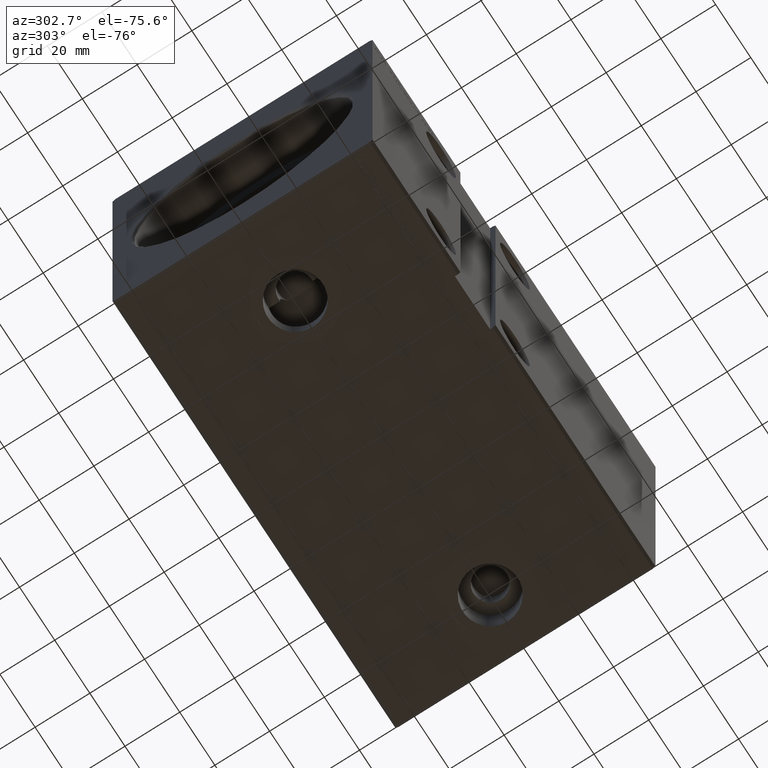
[diagram: clean part render]
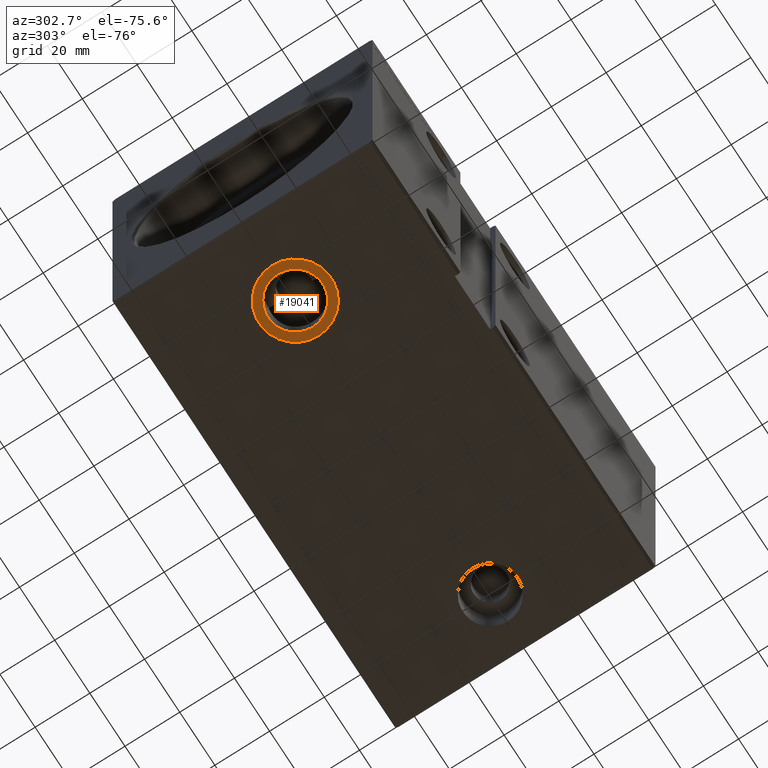
[diagram: same view with one face highlighted and labeled with its STEP entity id]
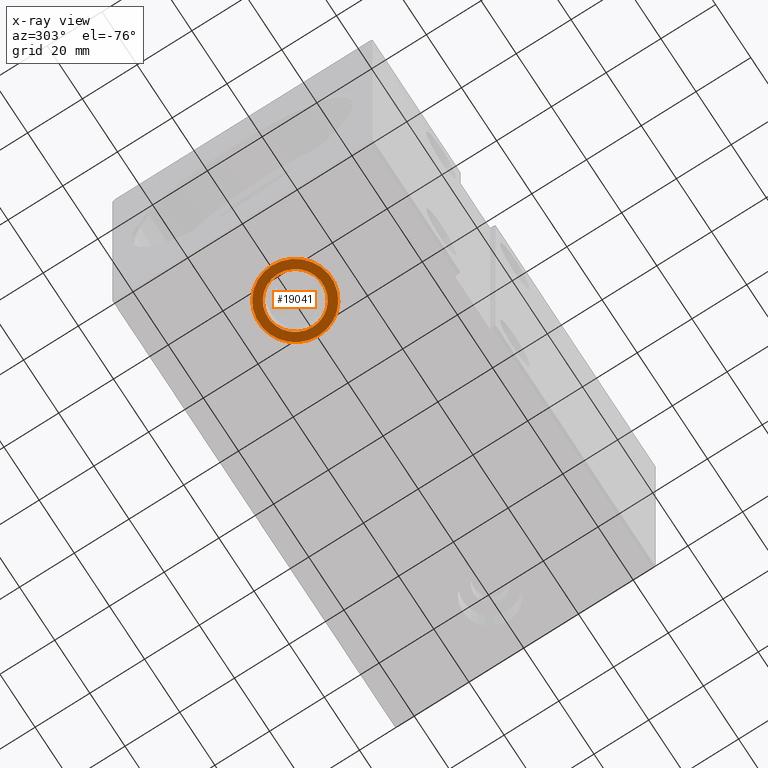
[diagram: x-ray of the same camera — body ghosted, the highlighted face saturated]
A machine part, auxiliary view. The second image highlights one B-rep face of the part: STEP entity #19041.
The next image is the same camera in x-ray: the body ghosted, the highlighted face saturated — about 0% of this face is hidden behind the body in this view.
In plain terms, the highlighted planar face has unit normal (0, 0, -1).
Its self-contained STEP definition (entity closure, byte-faithful):
#19 = AXIS2_PLACEMENT_3D ( 'NONE', #6201, #2583, #18799 ) ;
#624 = CIRCLE ( 'NONE', #19014, 13.24999999999999822 ) ;
#782 = ORIENTED_EDGE ( 'NONE', *, *, #17474, .F. ) ;
#867 = AXIS2_PLACEMENT_3D ( 'NONE', #5587, #8553, #5368 ) ;
#2332 = ORIENTED_EDGE ( 'NONE', *, *, #26760, .T. ) ;
#2583 = DIRECTION ( 'NONE',  ( 0.000000000000000000, 0.000000000000000000, -1.000000000000000000 ) ) ;
#4198 = CARTESIAN_POINT ( 'NONE',  ( 43.25000000000000000, 4.813926486415656995E-15, -62.39999999999999858 ) ) ;
#5368 = DIRECTION ( 'NONE',  ( -1.000000000000000000, 0.000000000000000000, 0.000000000000000000 ) ) ;
#5587 = CARTESIAN_POINT ( 'NONE',  ( 30.00000000000000000, 3.191269477545414310E-15, -62.39999999999999858 ) ) ;
#6201 = CARTESIAN_POINT ( 'NONE',  ( 30.00000000000000000, 3.191269477545414310E-15, -62.39999999999999858 ) ) ;
#6925 = CARTESIAN_POINT ( 'NONE',  ( 30.00000000000000000, 3.191269477545414310E-15, -62.39999999999999858 ) ) ;
#7098 = CARTESIAN_POINT ( 'NONE',  ( 0.000000000000000000, 0.000000000000000000, -62.39999999999999858 ) ) ;
#7172 = CARTESIAN_POINT ( 'NONE',  ( 19.99999999999999645, 3.191269477545414310E-15, -62.39999999999999858 ) ) ;
#7289 = DIRECTION ( 'NONE',  ( -1.000000000000000000, 0.000000000000000000, 0.000000000000000000 ) ) ;
#7917 = VERTEX_POINT ( 'NONE', #4198 ) ;
#8165 = CARTESIAN_POINT ( 'NONE',  ( 16.75000000000000000, 3.191269477545414310E-15, -62.39999999999999858 ) ) ;
#8281 = FACE_BOUND ( 'NONE', #29207, .T. ) ;
#8553 = DIRECTION ( 'NONE',  ( 0.000000000000000000, 0.000000000000000000, -1.000000000000000000 ) ) ;
#10690 = FACE_OUTER_BOUND ( 'NONE', #22689, .T. ) ;
#13524 = DIRECTION ( 'NONE',  ( -1.000000000000000000, 0.000000000000000000, 0.000000000000000000 ) ) ;
#13727 = VERTEX_POINT ( 'NONE', #34699 ) ;
#13815 = ORIENTED_EDGE ( 'NONE', *, *, #39269, .T. ) ;
#15669 = CIRCLE ( 'NONE', #19, 10.00000000000000178 ) ;
#17474 = EDGE_CURVE ( 'NONE', #34711, #13727, #25231, .T. ) ;
#18799 = DIRECTION ( 'NONE',  ( -1.000000000000000000, 0.000000000000000000, 0.000000000000000000 ) ) ;
#19014 = AXIS2_PLACEMENT_3D ( 'NONE', #36738, #20744, #7289 ) ;
#19041 = ADVANCED_FACE ( 'NONE', ( #8281, #10690 ), #30916, .T. ) ;
#19261 = CIRCLE ( 'NONE', #867, 13.24999999999999822 ) ;
#19519 = DIRECTION ( 'NONE',  ( 0.000000000000000000, 0.000000000000000000, -1.000000000000000000 ) ) ;
#20744 = DIRECTION ( 'NONE',  ( 0.000000000000000000, 0.000000000000000000, -1.000000000000000000 ) ) ;
#21173 = AXIS2_PLACEMENT_3D ( 'NONE', #7098, #36749, #23537 ) ;
#22689 = EDGE_LOOP ( 'NONE', ( #2332, #13815 ) ) ;
#23537 = DIRECTION ( 'NONE',  ( -1.000000000000000000, 0.000000000000000000, -0.000000000000000000 ) ) ;
#25231 = CIRCLE ( 'NONE', #27258, 10.00000000000000178 ) ;
#25489 = ORIENTED_EDGE ( 'NONE', *, *, #25839, .F. ) ;
#25839 = EDGE_CURVE ( 'NONE', #13727, #34711, #15669, .T. ) ;
#26760 = EDGE_CURVE ( 'NONE', #35918, #7917, #624, .T. ) ;
#27258 = AXIS2_PLACEMENT_3D ( 'NONE', #6925, #19519, #13524 ) ;
#29207 = EDGE_LOOP ( 'NONE', ( #782, #25489 ) ) ;
#30916 = PLANE ( 'NONE',  #21173 ) ;
#34699 = CARTESIAN_POINT ( 'NONE',  ( 40.00000000000000000, 4.415916276692767764E-15, -62.39999999999999858 ) ) ;
#34711 = VERTEX_POINT ( 'NONE', #7172 ) ;
#35918 = VERTEX_POINT ( 'NONE', #8165 ) ;
#36738 = CARTESIAN_POINT ( 'NONE',  ( 30.00000000000000000, 3.191269477545414310E-15, -62.39999999999999858 ) ) ;
#36749 = DIRECTION ( 'NONE',  ( 0.000000000000000000, 0.000000000000000000, -1.000000000000000000 ) ) ;
#39269 = EDGE_CURVE ( 'NONE', #7917, #35918, #19261, .T. ) ;